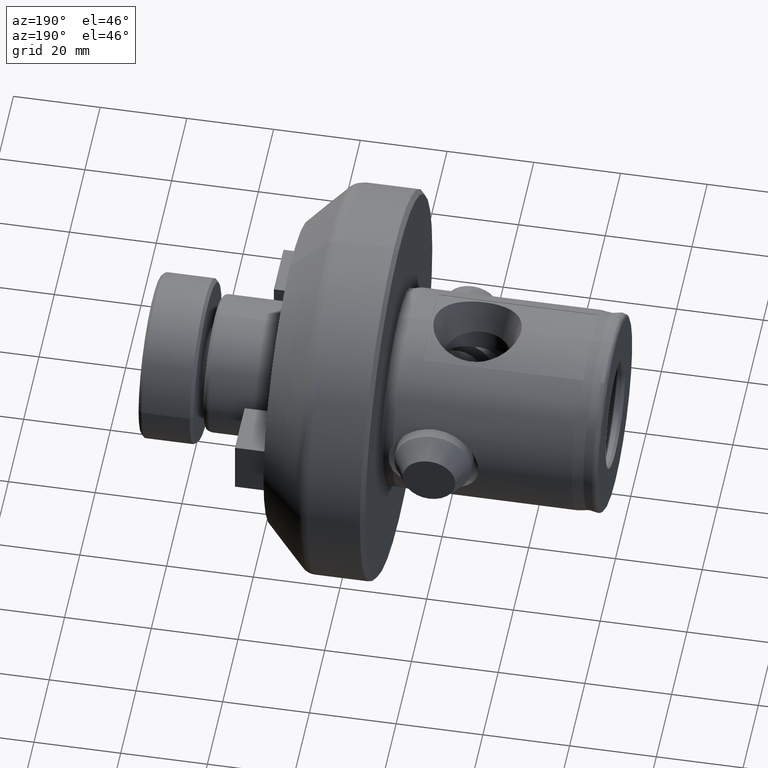
[diagram: clean part render]
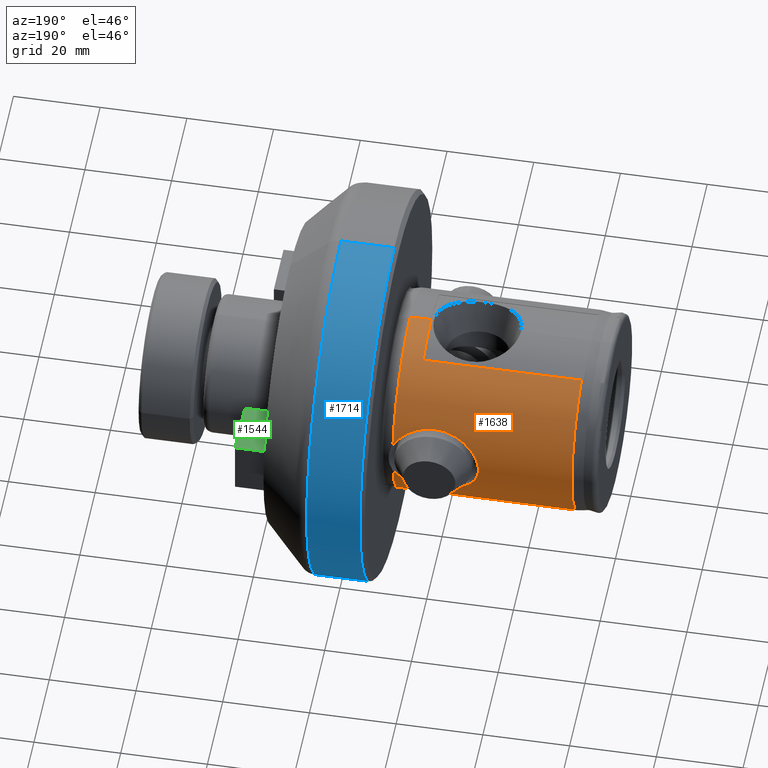
[diagram: same view with three faces highlighted in distinct colors, each labeled with its STEP entity id]
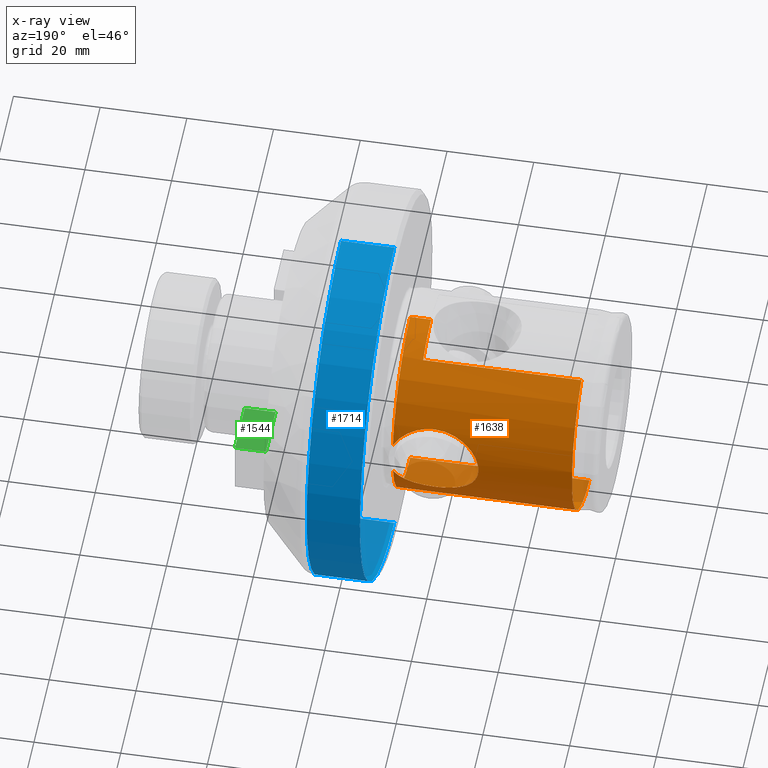
[diagram: x-ray of the same camera — body ghosted, the three highlighted faces saturated]
A machine part, auxiliary view with three faces highlighted in distinct colors.
The next image is the same camera in x-ray (body ghosted, the three faces saturated) — at least one of them is partly hidden behind the body in this view.
Their STEP definitions:

[orange] entity #1638 — the highlighted cylindrical surface (partial cylindrical patch) has radius 23 mm, axis along (-1, -0, -0).
#674 = CARTESIAN_POINT ( 'NONE',  ( 47.31994326666491400, 2.816687638038912000E-015, -22.99999999999999300 ) ) ;
#701 = CARTESIAN_POINT ( 'NONE',  ( 37.99999999999999300, 21.02302948290293500, -9.329106675400032200 ) ) ;
#787 = CARTESIAN_POINT ( 'NONE',  ( 47.31994326666491400, 0.0000000000000000000, 22.99999999999999300 ) ) ;
#793 = CARTESIAN_POINT ( 'NONE',  ( 6.000000000000000000, 10.50000000000000200, 20.46338192968110500 ) ) ;
#795 = CARTESIAN_POINT ( 'NONE',  ( 47.31994326666645600, 22.60442801480970600, 4.247332589200629700 ) ) ;
#801 = CARTESIAN_POINT ( 'NONE',  ( 42.50000000000000000, 10.50000000000000200, 20.46338192968110900 ) ) ;
#814 = CARTESIAN_POINT ( 'NONE',  ( 6.000000000000000000, 2.816687638038911200E-015, -22.99999999999998600 ) ) ;
#815 = CARTESIAN_POINT ( 'NONE',  ( 42.50000000000000000, 0.0000000000000000000, 22.99999999999998900 ) ) ;
#828 = CARTESIAN_POINT ( 'NONE',  ( 47.31994326666491400, 22.60442801480920500, -4.247332589203309400 ) ) ;
#834 = CARTESIAN_POINT ( 'NONE',  ( 37.99999999999999300, 21.02302948290293500, 9.329106675400032200 ) ) ;
#1638 = ADVANCED_FACE ( 'NONE', ( #4355 ), #4364, .T. ) ;
#2029 = EDGE_LOOP ( 'NONE', ( #8595, #8572, #8571, #8578, #8570, #8573, #8598, #8583, #8567, #8566 ) ) ;
#2227 = DIRECTION ( 'NONE',  ( -1.000000000000000000, -0.0000000000000000000, -0.0000000000000000000 ) ) ;
#2248 = CARTESIAN_POINT ( 'NONE',  ( 47.31994326666491400, 0.0000000000000000000, 0.0000000000000000000 ) ) ;
#2255 = DIRECTION ( 'NONE',  ( -1.000000000000000000, -0.0000000000000000000, -0.0000000000000000000 ) ) ;
#2256 = DIRECTION ( 'NONE',  ( 0.0000000000000000000, 0.0000000000000000000, 1.000000000000000000 ) ) ;
#2330 = DIRECTION ( 'NONE',  ( 0.0000000000000000000, 0.0000000000000000000, 1.000000000000000000 ) ) ;
#2575 = CIRCLE ( 'NONE', #2844, 22.99999999999999300 ) ;
#2588 = CIRCLE ( 'NONE', #2839, 22.99999999999999300 ) ;
#2839 = AXIS2_PLACEMENT_3D ( 'NONE', #2248, #2255, #2256 ) ;
#2844 = AXIS2_PLACEMENT_3D ( 'NONE', #7569, #2227, #2330 ) ;
#2918 = B_SPLINE_CURVE_WITH_KNOTS ( 'NONE', 3,
 ( #6424, #6191, #6187, #6421, #6420, #6414, #6406, #6408, #6403, #6407, #6464, #6533, #6219, #6282 ),
 .UNSPECIFIED., .F., .F.,
 ( 4, 2, 2, 2, 2, 2, 4 ),
 ( 0.02793456468833157400, 0.02933293551835682000, 0.03073130634838207000, 0.03212967717840731900, 0.03352804800843256500, 0.03632478966848305700, 0.03912153132853355600 ),
 .UNSPECIFIED. ) ;
#2919 = B_SPLINE_CURVE_WITH_KNOTS ( 'NONE', 3,
 ( #6419, #6277, #6274, #6301, #6183, #6225, #6283, #6303, #6276, #6188, #6196, #6184, #6279, #6278, #6207, #6208 ),
 .UNSPECIFIED., .F., .F.,
 ( 4, 2, 2, 2, 2, 2, 2, 4 ),
 ( 0.007805913196052836600, 0.01061031670573302600, 0.01341472021541321700, 0.01481692197025331900, 0.01621912372509342500, 0.01762132547993353100, 0.01832242635735357300, 0.01902352723477361900 ),
 .UNSPECIFIED. ) ;
#2934 = B_SPLINE_CURVE_WITH_KNOTS ( 'NONE', 3,
 ( #7262, #7336, #7258, #7332, #7333, #7334, #7335, #7344, #7347, #7356, #7354, #7359, #7374, #7349, #7350, #7352, #7353, #7348, #7358, #7355, #7357, #7364, #7360, #7361, #7351, #7362, #7363, #7375, #7384, #7385, #7386, #7383, #7380, #7381, #7382, #7377, #7387, #7388, #7395, #7396, #7392, #7393, #7394, #7391, #7389, #7390, #7379, #7378 ),
 .UNSPECIFIED., .F., .F.,
 ( 4, 2, 2, 2, 2, 2, 2, 2, 2, 2, 2, 2, 2, 2, 2, 2, 2, 2, 2, 2, 2, 2, 2, 4 ),
 ( 0.03912153132853355600, 0.04107657020053784300, 0.04303160907254213000, 0.04400912850854428500, 0.04498664794454643900, 0.04694168681655072600, 0.04791920625255287300, 0.04889672568855502100, 0.05085176456055931500, 0.05182928399656146200, 0.05280680343256360900, 0.05378432286856575700, 0.05476184230456790400, 0.05671688117657219100, 0.05769440061257433800, 0.05867192004857648600, 0.06062695892058078000, 0.06258199779258508100, 0.06453703666458937600, 0.06551455610059150900, 0.06649207553659364200, 0.06844711440859792300, 0.06942463384460007000, 0.07040215328060221700 ),
 .UNSPECIFIED. ) ;
#3025 = EDGE_CURVE ( 'NONE', #8394, #8353, #4592, .T. ) ;
#3026 = EDGE_CURVE ( 'NONE', #8179, #8354, #4591, .T. ) ;
#3030 = EDGE_CURVE ( 'NONE', #8358, #8354, #4598, .T. ) ;
#3034 = EDGE_CURVE ( 'NONE', #8383, #8335, #2918, .T. ) ;
#3035 = EDGE_CURVE ( 'NONE', #7952, #8386, #2919, .T. ) ;
#3039 = EDGE_CURVE ( 'NONE', #8394, #8358, #5548, .T. ) ;
#3041 = EDGE_CURVE ( 'NONE', #8388, #8353, #5546, .T. ) ;
#3309 = EDGE_CURVE ( 'NONE', #8335, #7952, #2934, .T. ) ;
#3360 = EDGE_CURVE ( 'NONE', #8386, #8179, #2575, .T. ) ;
#3372 = EDGE_CURVE ( 'NONE', #8388, #8383, #2588, .T. ) ;
#4355 = FACE_OUTER_BOUND ( 'NONE', #2029, .T. ) ;
#4364 = CYLINDRICAL_SURFACE ( 'NONE', #7054, 22.99999999999998900 ) ;
#4586 = VECTOR ( 'NONE', #6477, 1000.000000000000000 ) ;
#4591 = LINE ( 'NONE', #6479, #4586 ) ;
#4592 = CIRCLE ( 'NONE', #6931, 22.99999999999998900 ) ;
#4598 = CIRCLE ( 'NONE', #6930, 22.99999999999998600 ) ;
#5048 = DIRECTION ( 'NONE',  ( 0.0000000000000000000, 0.0000000000000000000, 1.000000000000000000 ) ) ;
#5050 = CARTESIAN_POINT ( 'NONE',  ( 0.0000000000000000000, 0.0000000000000000000, 0.0000000000000000000 ) ) ;
#5179 = DIRECTION ( 'NONE',  ( -1.000000000000000000, -0.0000000000000000000, -0.0000000000000000000 ) ) ;
#5544 = VECTOR ( 'NONE', #6502, 1000.000000000000000 ) ;
#5546 = LINE ( 'NONE', #6246, #5547 ) ;
#5547 = VECTOR ( 'NONE', #6223, 1000.000000000000000 ) ;
#5548 = LINE ( 'NONE', #6213, #5544 ) ;
#6166 = CARTESIAN_POINT ( 'NONE',  ( 6.000000000000000000, 0.0000000000000000000, 0.0000000000000000000 ) ) ;
#6183 = CARTESIAN_POINT ( 'NONE',  ( 42.55276007068971500, 21.39997433124238700, -8.441284336976250900 ) ) ;
#6184 = CARTESIAN_POINT ( 'NONE',  ( 46.68341790600701600, 22.40223188946745100, -5.212933762859533400 ) ) ;
#6187 = CARTESIAN_POINT ( 'NONE',  ( 46.82995149347907200, 22.44664710287428700, 5.028554633101019400 ) ) ;
#6188 = CARTESIAN_POINT ( 'NONE',  ( 45.93977694400570000, 22.18083165579709300, -6.092382436661053700 ) ) ;
#6191 = CARTESIAN_POINT ( 'NONE',  ( 47.08955588930877700, 22.52913458138538500, 4.648046439619433200 ) ) ;
#6196 = CARTESIAN_POINT ( 'NONE',  ( 46.25094083912525600, 22.27122634616512200, -5.755967791745855600 ) ) ;
#6207 = CARTESIAN_POINT ( 'NONE',  ( 47.20528351920967200, 22.56695579666737900, -4.446760827927814600 ) ) ;
#6208 = CARTESIAN_POINT ( 'NONE',  ( 47.31994326666491400, 22.60442801480920500, -4.247332589203309400 ) ) ;
#6213 = CARTESIAN_POINT ( 'NONE',  ( 0.0000000000000000000, 10.50000000000000200, 20.46338192968110900 ) ) ;
#6219 = CARTESIAN_POINT ( 'NONE',  ( 38.93453641224568400, 21.02302948290293800, 9.329106675400030500 ) ) ;
#6223 = DIRECTION ( 'NONE',  ( -1.000000000000000000, -0.0000000000000000000, -0.0000000000000000000 ) ) ;
#6225 = CARTESIAN_POINT ( 'NONE',  ( 43.77428978980180600, 21.64165904296519800, -7.790515998759055100 ) ) ;
#6246 = CARTESIAN_POINT ( 'NONE',  ( 0.0000000000000000000, 0.0000000000000000000, 22.99999999999998900 ) ) ;
#6274 = CARTESIAN_POINT ( 'NONE',  ( 39.86153954190140800, 21.07300003772446200, -9.218897319016278400 ) ) ;
#6276 = CARTESIAN_POINT ( 'NONE',  ( 45.27499579696793600, 21.99912407918180400, -6.718999661118417100 ) ) ;
#6277 = CARTESIAN_POINT ( 'NONE',  ( 38.93642399577963400, 21.02302948290293500, -9.329106675400032200 ) ) ;
#6278 = CARTESIAN_POINT ( 'NONE',  ( 47.08279364479418700, 22.52751418627219200, -4.642135129791977700 ) ) ;
#6279 = CARTESIAN_POINT ( 'NONE',  ( 46.82217198050202700, 22.44524393686850800, -5.024871997415552000 ) ) ;
#6282 = CARTESIAN_POINT ( 'NONE',  ( 37.99999999999999300, 21.02302948290293500, 9.329106675400032200 ) ) ;
#6283 = CARTESIAN_POINT ( 'NONE',  ( 44.17171257433486200, 21.72913594905139700, -7.544823456500966000 ) ) ;
#6301 = CARTESIAN_POINT ( 'NONE',  ( 41.68883070908899000, 21.26362103410095000, -8.770280433751272800 ) ) ;
#6303 = CARTESIAN_POINT ( 'NONE',  ( 44.92135572386769800, 21.90778923297271800, -7.009171206766819900 ) ) ;
#6403 = CARTESIAN_POINT ( 'NONE',  ( 43.76967925708884600, 21.64067769323821000, 7.793238074577366200 ) ) ;
#6406 = CARTESIAN_POINT ( 'NONE',  ( 44.91604271459752300, 21.90645841561001500, 7.013310844423152400 ) ) ;
#6407 = CARTESIAN_POINT ( 'NONE',  ( 42.54732527097210900, 21.39903855798653600, 8.443643267716145900 ) ) ;
#6408 = CARTESIAN_POINT ( 'NONE',  ( 44.16670149911318800, 21.72800725024953600, 7.548056057585812400 ) ) ;
#6414 = CARTESIAN_POINT ( 'NONE',  ( 45.27065326375134200, 21.99796512362721800, 6.722866270260104700 ) ) ;
#6419 = CARTESIAN_POINT ( 'NONE',  ( 37.99999999999999300, 21.02302948290293500, -9.329106675400032200 ) ) ;
#6420 = CARTESIAN_POINT ( 'NONE',  ( 45.93895781628191300, 22.18057996718181700, 6.093379422584241900 ) ) ;
#6421 = CARTESIAN_POINT ( 'NONE',  ( 46.25465311857600900, 22.27232375675969000, 5.751688650573294500 ) ) ;
#6424 = CARTESIAN_POINT ( 'NONE',  ( 47.31994326666645600, 22.60442801480970600, 4.247332589200629700 ) ) ;
#6448 = CARTESIAN_POINT ( 'NONE',  ( 42.50000000000000000, 0.0000000000000000000, 0.0000000000000000000 ) ) ;
#6451 = DIRECTION ( 'NONE',  ( -1.000000000000000000, -0.0000000000000000000, -0.0000000000000000000 ) ) ;
#6452 = DIRECTION ( 'NONE',  ( 0.0000000000000000000, 0.0000000000000000000, 1.000000000000000000 ) ) ;
#6464 = CARTESIAN_POINT ( 'NONE',  ( 41.68450828607149100, 21.26305628226036100, 8.771633812662186000 ) ) ;
#6477 = DIRECTION ( 'NONE',  ( -1.000000000000000000, -0.0000000000000000000, -0.0000000000000000000 ) ) ;
#6479 = CARTESIAN_POINT ( 'NONE',  ( 0.0000000000000000000, 2.816687638038911200E-015, -22.99999999999998900 ) ) ;
#6485 = DIRECTION ( 'NONE',  ( 0.0000000000000000000, 0.0000000000000000000, -1.000000000000000000 ) ) ;
#6486 = DIRECTION ( 'NONE',  ( 1.000000000000000000, 0.0000000000000000000, 0.0000000000000000000 ) ) ;
#6502 = DIRECTION ( 'NONE',  ( -1.000000000000000000, -0.0000000000000000000, -0.0000000000000000000 ) ) ;
#6533 = CARTESIAN_POINT ( 'NONE',  ( 39.85911555709540000, 21.07286143327008800, 9.219199163713112100 ) ) ;
#6930 = AXIS2_PLACEMENT_3D ( 'NONE', #6166, #6451, #6452 ) ;
#6931 = AXIS2_PLACEMENT_3D ( 'NONE', #6448, #6486, #6485 ) ;
#7054 = AXIS2_PLACEMENT_3D ( 'NONE', #5050, #5179, #5048 ) ;
#7258 = CARTESIAN_POINT ( 'NONE',  ( 36.68401058337281000, 21.04805742750650000, 9.273264838382019100 ) ) ;
#7262 = CARTESIAN_POINT ( 'NONE',  ( 37.99999999999999300, 21.02302948290293500, 9.329106675400032200 ) ) ;
#7332 = CARTESIAN_POINT ( 'NONE',  ( 35.40018018246572500, 21.14289021765644300, 9.054963030212299200 ) ) ;
#7333 = CARTESIAN_POINT ( 'NONE',  ( 34.77298781264473600, 21.21237417468118000, 8.893220479673779300 ) ) ;
#7334 = CARTESIAN_POINT ( 'NONE',  ( 33.85417199471006500, 21.34411461546712400, 8.569849382485966100 ) ) ;
#7335 = CARTESIAN_POINT ( 'NONE',  ( 33.55013040917823700, 21.39288758197375600, 8.447782423573244200 ) ) ;
#7336 = CARTESIAN_POINT ( 'NONE',  ( 37.34672013531245200, 21.02302948290293500, 9.329106675400032200 ) ) ;
#7344 = CARTESIAN_POINT ( 'NONE',  ( 32.95940360873681400, 21.49681667861639800, 8.179702907621992500 ) ) ;
#7347 = CARTESIAN_POINT ( 'NONE',  ( 32.67223516344359500, 21.55198369335659000, 8.033695286310219800 ) ) ;
#7348 = CARTESIAN_POINT ( 'NONE',  ( 28.28527191870844200, 22.73546209714546200, 3.490941170587963200 ) ) ;
#7349 = CARTESIAN_POINT ( 'NONE',  ( 29.88097171409930700, 22.23323036757928200, 5.894079822897678500 ) ) ;
#7350 = CARTESIAN_POINT ( 'NONE',  ( 29.66911736479820800, 22.29550035252381300, 5.654774460112021100 ) ) ;
#7351 = CARTESIAN_POINT ( 'NONE',  ( 27.52993919615654100, 22.99983765961740900, 0.3393201181388690300 ) ) ;
#7352 = CARTESIAN_POINT ( 'NONE',  ( 29.07146015263001000, 22.47637168572174100, 4.906725639546597700 ) ) ;
#7353 = CARTESIAN_POINT ( 'NONE',  ( 28.72300614365534300, 22.58914781162280500, 4.368298210244891100 ) ) ;
#7354 = CARTESIAN_POINT ( 'NONE',  ( 31.30815519338855100, 21.84942086450728000, 7.196628563024516400 ) ) ;
#7355 = CARTESIAN_POINT ( 'NONE',  ( 27.93333423163185400, 22.85657347713734900, 2.582831309505722000 ) ) ;
#7356 = CARTESIAN_POINT ( 'NONE',  ( 31.83473859810557400, 21.72467860671368800, 7.559853419409896500 ) ) ;
#7357 = CARTESIAN_POINT ( 'NONE',  ( 27.83947931671895400, 22.88954253136071400, 2.273464550192782600 ) ) ;
#7358 = CARTESIAN_POINT ( 'NONE',  ( 28.15597701882341400, 22.77961915606984200, 3.191068754125744100 ) ) ;
#7359 = CARTESIAN_POINT ( 'NONE',  ( 30.56806869025394500, 22.04152164685811900, 6.574076907689105000 ) ) ;
#7360 = CARTESIAN_POINT ( 'NONE',  ( 27.62915969025317500, 22.96418897180820600, 1.323788875533435900 ) ) ;
#7361 = CARTESIAN_POINT ( 'NONE',  ( 27.55026809874536300, 22.99249322762191000, 0.6720470948260729400 ) ) ;
#7362 = CARTESIAN_POINT ( 'NONE',  ( 27.52861084715092600, 23.00031651696898600, -0.6450753169664288400 ) ) ;
#7363 = CARTESIAN_POINT ( 'NONE',  ( 27.60479751704353600, 22.97259896412502300, -1.293096020951950000 ) ) ;
#7364 = CARTESIAN_POINT ( 'NONE',  ( 27.68739548057581600, 22.94334875735827600, 1.643942259989817700 ) ) ;
#7374 = CARTESIAN_POINT ( 'NONE',  ( 30.32972208733660200, 22.10642472344307700, 6.353164210319465400 ) ) ;
#7375 = CARTESIAN_POINT ( 'NONE',  ( 27.83350975557966900, 22.89164153740824400, -2.252964235021368100 ) ) ;
#7377 = CARTESIAN_POINT ( 'NONE',  ( 31.31462774158478300, 21.84779390441041300, -7.201716864117094600 ) ) ;
#7378 = CARTESIAN_POINT ( 'NONE',  ( 37.99999999999999300, 21.02302948290293500, -9.329106675400032200 ) ) ;
#7379 = CARTESIAN_POINT ( 'NONE',  ( 37.67359452623215100, 21.02302948290294200, -9.329106675400034000 ) ) ;
#7380 = CARTESIAN_POINT ( 'NONE',  ( 29.06862708856776600, 22.47722553618073200, -4.903229049446282200 ) ) ;
#7381 = CARTESIAN_POINT ( 'NONE',  ( 29.87173431358153800, 22.23418512828621000, -5.908327563428202600 ) ) ;
#7382 = CARTESIAN_POINT ( 'NONE',  ( 30.32138159036985000, 22.10550031671776200, -6.366920765023841100 ) ) ;
#7383 = CARTESIAN_POINT ( 'NONE',  ( 28.71280438712520000, 22.59249961805198800, -4.350349013793513500 ) ) ;
#7384 = CARTESIAN_POINT ( 'NONE',  ( 27.92880460163795000, 22.85815343201365100, -2.569045102603404500 ) ) ;
#7385 = CARTESIAN_POINT ( 'NONE',  ( 28.15186801632154700, 22.78102560529261600, -3.181201570427477400 ) ) ;
#7386 = CARTESIAN_POINT ( 'NONE',  ( 28.28007468037763100, 22.73722942831550100, -3.479230059584545600 ) ) ;
#7387 = CARTESIAN_POINT ( 'NONE',  ( 31.84133868342346200, 21.72318329268426900, -7.564134125396970300 ) ) ;
#7388 = CARTESIAN_POINT ( 'NONE',  ( 32.67939678798726500, 21.55057538131411500, -8.037468823761367200 ) ) ;
#7389 = CARTESIAN_POINT ( 'NONE',  ( 36.68931288327314600, 21.05350228358761600, -9.260180991344670400 ) ) ;
#7390 = CARTESIAN_POINT ( 'NONE',  ( 37.34455777235298500, 21.02913372703620700, -9.315387543624723300 ) ) ;
#7391 = CARTESIAN_POINT ( 'NONE',  ( 36.36542006270405400, 21.07162731124408600, -9.219004130141479800 ) ) ;
#7392 = CARTESIAN_POINT ( 'NONE',  ( 33.86028604128169700, 21.34317373658459600, -8.572188231840257800 ) ) ;
#7393 = CARTESIAN_POINT ( 'NONE',  ( 34.77826735112156300, 21.21174753174199900, -8.894699071816866400 ) ) ;
#7394 = CARTESIAN_POINT ( 'NONE',  ( 35.40453974511226700, 21.14249563488240800, -9.055878594101878700 ) ) ;
#7395 = CARTESIAN_POINT ( 'NONE',  ( 32.96651418972812300, 21.49549541229511000, -8.183167222790020300 ) ) ;
#7396 = CARTESIAN_POINT ( 'NONE',  ( 33.55657580801109700, 21.39182551980534800, -8.450464469267354100 ) ) ;
#7569 = CARTESIAN_POINT ( 'NONE',  ( 47.31994326666491400, 0.0000000000000000000, 0.0000000000000000000 ) ) ;
#7952 = VERTEX_POINT ( 'NONE', #701 ) ;
#8179 = VERTEX_POINT ( 'NONE', #674 ) ;
#8335 = VERTEX_POINT ( 'NONE', #834 ) ;
#8353 = VERTEX_POINT ( 'NONE', #815 ) ;
#8354 = VERTEX_POINT ( 'NONE', #814 ) ;
#8358 = VERTEX_POINT ( 'NONE', #793 ) ;
#8383 = VERTEX_POINT ( 'NONE', #795 ) ;
#8386 = VERTEX_POINT ( 'NONE', #828 ) ;
#8388 = VERTEX_POINT ( 'NONE', #787 ) ;
#8394 = VERTEX_POINT ( 'NONE', #801 ) ;
#8566 = ORIENTED_EDGE ( 'NONE', *, *, #3035, .T. ) ;
#8567 = ORIENTED_EDGE ( 'NONE', *, *, #3309, .T. ) ;
#8570 = ORIENTED_EDGE ( 'NONE', *, *, #3025, .T. ) ;
#8571 = ORIENTED_EDGE ( 'NONE', *, *, #3030, .F. ) ;
#8572 = ORIENTED_EDGE ( 'NONE', *, *, #3026, .T. ) ;
#8573 = ORIENTED_EDGE ( 'NONE', *, *, #3041, .F. ) ;
#8578 = ORIENTED_EDGE ( 'NONE', *, *, #3039, .F. ) ;
#8583 = ORIENTED_EDGE ( 'NONE', *, *, #3034, .T. ) ;
#8595 = ORIENTED_EDGE ( 'NONE', *, *, #3360, .T. ) ;
#8598 = ORIENTED_EDGE ( 'NONE', *, *, #3372, .T. ) ;

[blue] entity #1714 — the highlighted cylindrical surface (partial cylindrical patch) has radius 45 mm, axis along (-1, -0, -0).
#717 = CARTESIAN_POINT ( 'NONE',  ( 63.26814575050758500, 5.510910596163089600E-015, -45.00000000000000000 ) ) ;
#725 = CARTESIAN_POINT ( 'NONE',  ( 63.26814575050758500, 0.0000000000000000000, 45.00000000000000000 ) ) ;
#768 = CARTESIAN_POINT ( 'NONE',  ( 50.99999999999999300, 5.510910596163089600E-015, -45.00000000000000000 ) ) ;
#770 = CARTESIAN_POINT ( 'NONE',  ( 50.99999999999999300, 0.0000000000000000000, 45.00000000000000000 ) ) ;
#1714 = ADVANCED_FACE ( 'NONE', ( #4467 ), #4476, .T. ) ;
#2042 = EDGE_LOOP ( 'NONE', ( #3591, #3592, #3593, #3594 ) ) ;
#2215 = DIRECTION ( 'NONE',  ( -1.000000000000000000, -0.0000000000000000000, -0.0000000000000000000 ) ) ;
#2217 = CARTESIAN_POINT ( 'NONE',  ( 0.0000000000000000000, 5.510910596163089600E-015, -45.00000000000000000 ) ) ;
#2600 = LINE ( 'NONE', #2217, #2602 ) ;
#2602 = VECTOR ( 'NONE', #2215, 1000.000000000000000 ) ;
#2976 = EDGE_CURVE ( 'NONE', #8153, #8400, #4527, .T. ) ;
#3000 = EDGE_CURVE ( 'NONE', #8400, #8398, #4557, .T. ) ;
#3067 = EDGE_CURVE ( 'NONE', #8153, #8154, #5587, .T. ) ;
#3386 = EDGE_CURVE ( 'NONE', #8154, #8398, #2600, .T. ) ;
#3591 = ORIENTED_EDGE ( 'NONE', *, *, #3067, .T. ) ;
#3592 = ORIENTED_EDGE ( 'NONE', *, *, #3386, .T. ) ;
#3593 = ORIENTED_EDGE ( 'NONE', *, *, #3000, .F. ) ;
#3594 = ORIENTED_EDGE ( 'NONE', *, *, #2976, .F. ) ;
#4467 = FACE_OUTER_BOUND ( 'NONE', #2042, .T. ) ;
#4476 = CYLINDRICAL_SURFACE ( 'NONE', #6973, 45.00000000000000000 ) ;
#4521 = VECTOR ( 'NONE', #5242, 1000.000000000000000 ) ;
#4527 = LINE ( 'NONE', #5198, #4521 ) ;
#4557 = CIRCLE ( 'NONE', #6946, 45.00000000000000000 ) ;
#5198 = CARTESIAN_POINT ( 'NONE',  ( 0.0000000000000000000, 0.0000000000000000000, 45.00000000000000000 ) ) ;
#5242 = DIRECTION ( 'NONE',  ( -1.000000000000000000, -0.0000000000000000000, -0.0000000000000000000 ) ) ;
#5397 = DIRECTION ( 'NONE',  ( 0.0000000000000000000, 0.0000000000000000000, 1.000000000000000000 ) ) ;
#5530 = DIRECTION ( 'NONE',  ( -1.000000000000000000, -0.0000000000000000000, -0.0000000000000000000 ) ) ;
#5531 = CARTESIAN_POINT ( 'NONE',  ( 0.0000000000000000000, 0.0000000000000000000, 0.0000000000000000000 ) ) ;
#5587 = CIRCLE ( 'NONE', #6921, 45.00000000000000000 ) ;
#6308 = DIRECTION ( 'NONE',  ( -1.000000000000000000, -0.0000000000000000000, -0.0000000000000000000 ) ) ;
#6323 = CARTESIAN_POINT ( 'NONE',  ( 50.99999999999999300, 0.0000000000000000000, 0.0000000000000000000 ) ) ;
#6396 = DIRECTION ( 'NONE',  ( 0.0000000000000000000, 0.0000000000000000000, 1.000000000000000000 ) ) ;
#6678 = DIRECTION ( 'NONE',  ( 0.0000000000000000000, 0.0000000000000000000, 1.000000000000000000 ) ) ;
#6679 = DIRECTION ( 'NONE',  ( -1.000000000000000000, -0.0000000000000000000, -0.0000000000000000000 ) ) ;
#6680 = CARTESIAN_POINT ( 'NONE',  ( 63.26814575050758500, 0.0000000000000000000, 0.0000000000000000000 ) ) ;
#6921 = AXIS2_PLACEMENT_3D ( 'NONE', #6680, #6679, #6678 ) ;
#6946 = AXIS2_PLACEMENT_3D ( 'NONE', #6323, #6308, #6396 ) ;
#6973 = AXIS2_PLACEMENT_3D ( 'NONE', #5531, #5530, #5397 ) ;
#8153 = VERTEX_POINT ( 'NONE', #725 ) ;
#8154 = VERTEX_POINT ( 'NONE', #717 ) ;
#8398 = VERTEX_POINT ( 'NONE', #768 ) ;
#8400 = VERTEX_POINT ( 'NONE', #770 ) ;

[green] entity #1544 — the highlighted planar face has unit normal (0, 0, -1).
#8 = CARTESIAN_POINT ( 'NONE',  ( 7.143750000000004300, -6.350000000000008500, 6.350000000000005000 ) ) ;
#9 = CARTESIAN_POINT ( 'NONE',  ( 0.0000000000000000000, 6.350000000000008500, 6.350000000000005000 ) ) ;
#19 = CARTESIAN_POINT ( 'NONE',  ( 0.0000000000000000000, -6.350000000000008500, 6.350000000000005000 ) ) ;
#79 = CARTESIAN_POINT ( 'NONE',  ( 7.143750000000004300, 6.350000000000008500, 6.350000000000005000 ) ) ;
#1544 = ADVANCED_FACE ( 'NONE', ( #4182 ), #7958, .F. ) ;
#1943 = EDGE_LOOP ( 'NONE', ( #6036, #6035, #6029, #6028, #6027 ) ) ;
#2444 = VECTOR ( 'NONE', #7238, 1000.000000000000000 ) ;
#2451 = LINE ( 'NONE', #7236, #2444 ) ;
#2567 = LINE ( 'NONE', #7540, #2568 ) ;
#2568 = VECTOR ( 'NONE', #7586, 1000.000000000000000 ) ;
#2974 = EDGE_CURVE ( 'NONE', #8412, #8521, #4524, .T. ) ;
#3183 = EDGE_CURVE ( 'NONE', #8523, #8521, #5732, .T. ) ;
#3185 = EDGE_CURVE ( 'NONE', #8480, #8412, #5736, .T. ) ;
#3269 = EDGE_CURVE ( 'NONE', #8524, #8523, #2451, .T. ) ;
#3357 = EDGE_CURVE ( 'NONE', #8524, #8480, #2567, .T. ) ;
#3721 = DIRECTION ( 'NONE',  ( -1.848892746611744800E-032, -1.000000000000000000, -1.365923996832131600E-016 ) ) ;
#3724 = CARTESIAN_POINT ( 'NONE',  ( 0.0000000000000000000, 6.350000000000008500, 6.350000000000005000 ) ) ;
#3865 = DIRECTION ( 'NONE',  ( -1.000000000000000000, -1.848892746611747500E-032, 1.848892746611747500E-032 ) ) ;
#3866 = CARTESIAN_POINT ( 'NONE',  ( 7.143750000000004300, -6.350000000000008500, 6.350000000000005000 ) ) ;
#4182 = FACE_OUTER_BOUND ( 'NONE', #1943, .T. ) ;
#4518 = VECTOR ( 'NONE', #5239, 1000.000000000000000 ) ;
#4524 = LINE ( 'NONE', #5222, #4518 ) ;
#4912 = CARTESIAN_POINT ( 'NONE',  ( 0.0000000000000000000, 0.0000000000000000000, 6.350000000000005000 ) ) ;
#5193 = DIRECTION ( 'NONE',  ( 1.848892746611744800E-032, 1.365923996832131600E-016, -1.000000000000000000 ) ) ;
#5222 = CARTESIAN_POINT ( 'NONE',  ( 0.0000000000000000000, 6.350000000000008500, 6.350000000000005000 ) ) ;
#5239 = DIRECTION ( 'NONE',  ( -1.848892746611744800E-032, -1.000000000000000000, -1.365923996832131600E-016 ) ) ;
#5257 = DIRECTION ( 'NONE',  ( 1.848892746611744800E-032, 1.000000000000000000, 1.365923996832131600E-016 ) ) ;
#5732 = LINE ( 'NONE', #3866, #5733 ) ;
#5733 = VECTOR ( 'NONE', #3865, 1000.000000000000000 ) ;
#5736 = LINE ( 'NONE', #3724, #5737 ) ;
#5737 = VECTOR ( 'NONE', #3721, 1000.000000000000000 ) ;
#6027 = ORIENTED_EDGE ( 'NONE', *, *, #3357, .T. ) ;
#6028 = ORIENTED_EDGE ( 'NONE', *, *, #3269, .F. ) ;
#6029 = ORIENTED_EDGE ( 'NONE', *, *, #3183, .F. ) ;
#6035 = ORIENTED_EDGE ( 'NONE', *, *, #2974, .T. ) ;
#6036 = ORIENTED_EDGE ( 'NONE', *, *, #3185, .T. ) ;
#7123 = AXIS2_PLACEMENT_3D ( 'NONE', #7976, #5193, #5257 ) ;
#7236 = CARTESIAN_POINT ( 'NONE',  ( 7.143750000000004300, 6.350000000000008500, 6.350000000000005000 ) ) ;
#7238 = DIRECTION ( 'NONE',  ( -1.848892746611744800E-032, -1.000000000000000000, -1.365923996832131600E-016 ) ) ;
#7540 = CARTESIAN_POINT ( 'NONE',  ( 7.143750000000004300, 6.350000000000008500, 6.350000000000005000 ) ) ;
#7586 = DIRECTION ( 'NONE',  ( -1.000000000000000000, -1.848892746611747500E-032, 1.848892746611747500E-032 ) ) ;
#7958 = PLANE ( 'NONE',  #7123 ) ;
#7976 = CARTESIAN_POINT ( 'NONE',  ( 7.143750000000004300, 6.350000000000008500, 6.350000000000005000 ) ) ;
#8412 = VERTEX_POINT ( 'NONE', #4912 ) ;
#8480 = VERTEX_POINT ( 'NONE', #9 ) ;
#8521 = VERTEX_POINT ( 'NONE', #19 ) ;
#8523 = VERTEX_POINT ( 'NONE', #8 ) ;
#8524 = VERTEX_POINT ( 'NONE', #79 ) ;